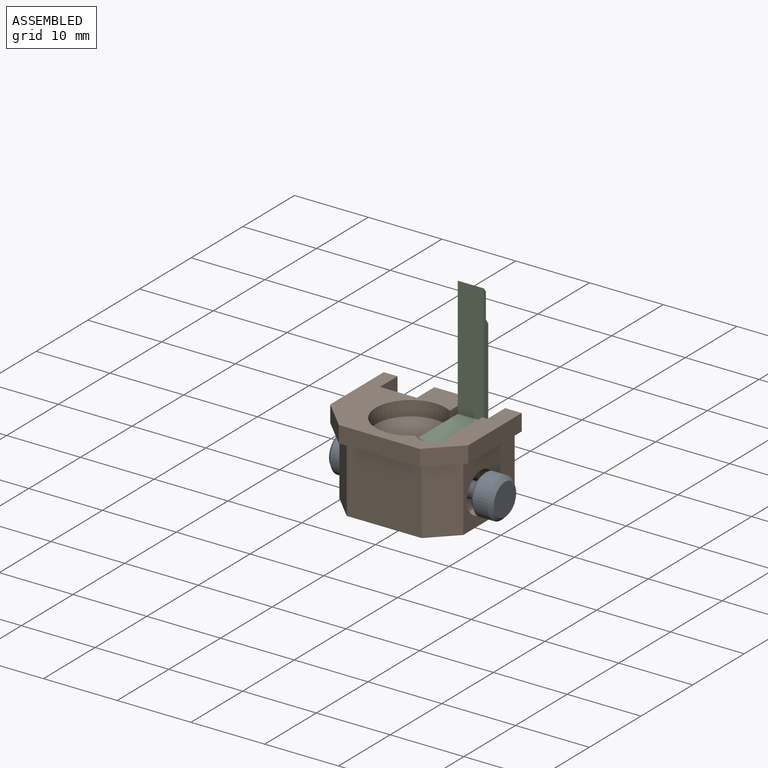
[diagram: assembled view]
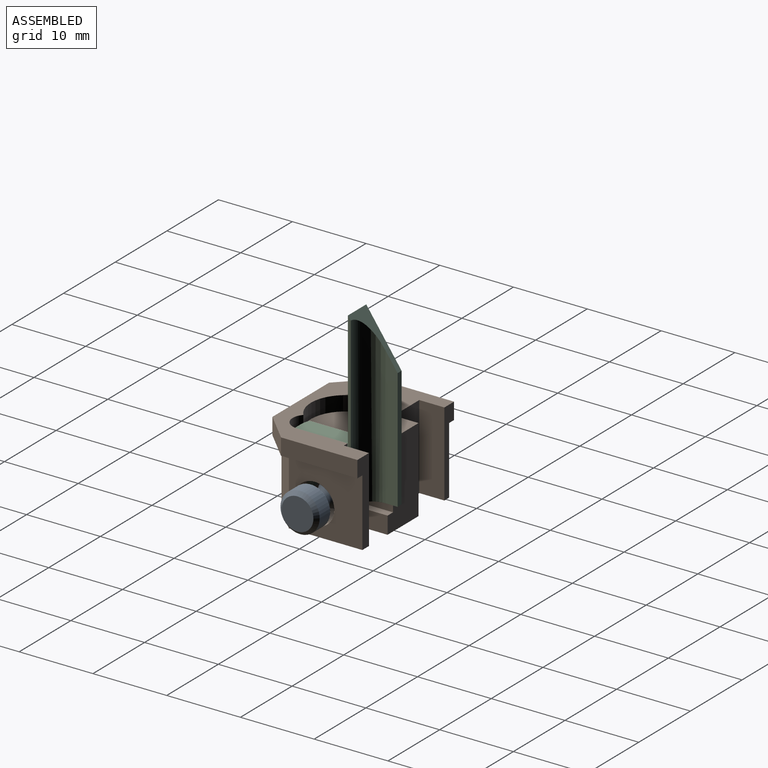
[diagram: assembled view, second angle]
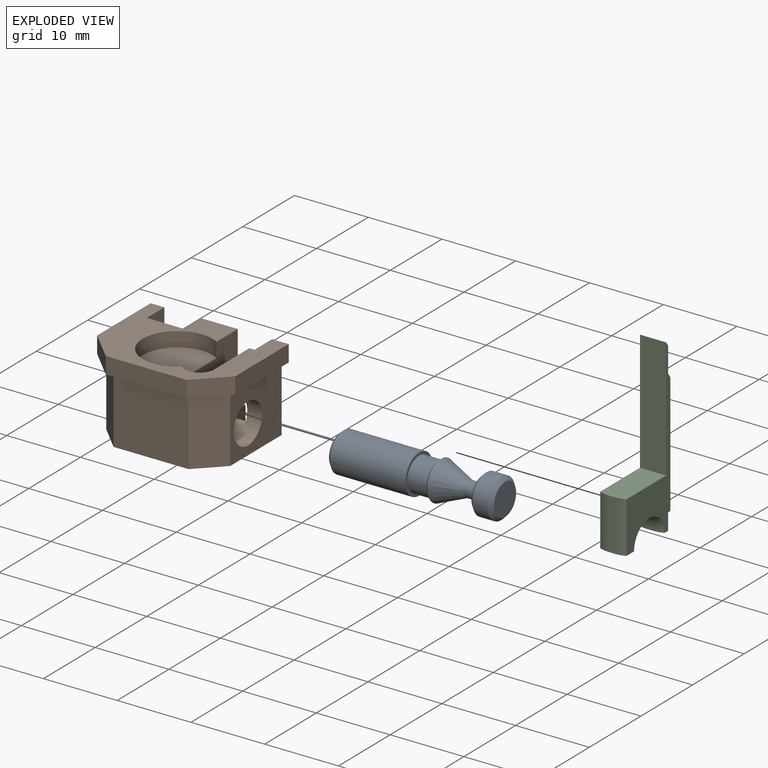
[diagram: exploded view]
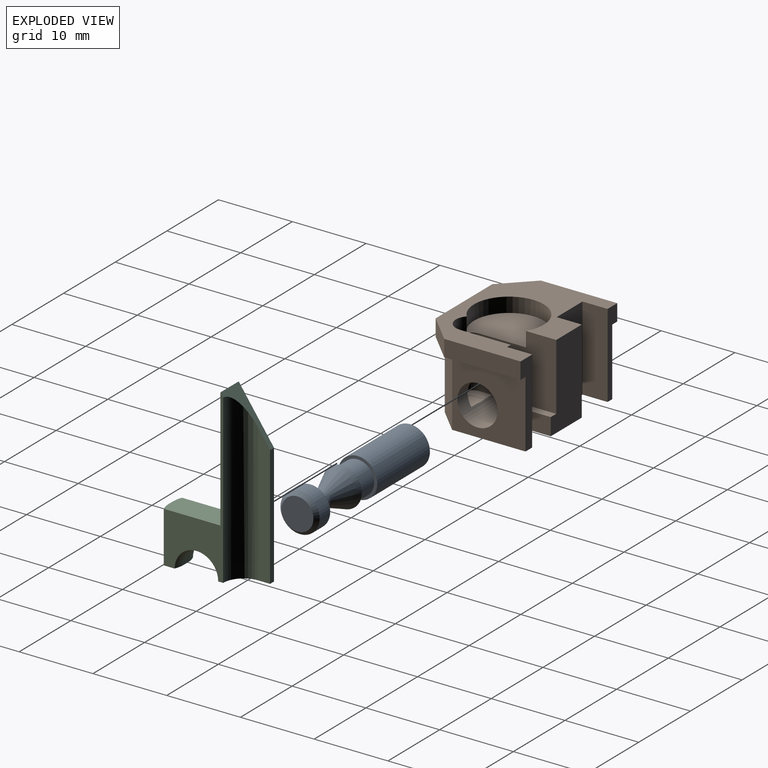
[diagram: exploded view, second angle]
ASSEMBLY  parts=3 mates=2
PART A: 14 faces, bbox 22.4x5.3x5.3 mm
  f0: cylinder r=2.66mm len=5.32mm, axis (1,0,0), area 34.1mm2, adj f5,f6
  f1: plane 4.32x4.32mm, normal (-1,0,0), area 11.2mm2, adj f3,f5
  f2: plane 4.32x4.32mm, normal (1,0,0), area 14.7mm2, adj f6
  f3: cylinder r=1.05mm len=2.1mm, axis (1,0,0), area 11.9mm2, adj f1,f4
  f4: plane 2.11x2.11mm, normal (1,0,0), area 0mm2, adj f3,f7
  f5: cone r=2.66mm half-angle=45deg, axis (1,0,0), area 10.7mm2, adj f0,f1
  f6: cone r=2.16mm half-angle=45deg, axis (-1,0,0), area 10.7mm2, adj f0,f2
  f7: cone r=2.66mm half-angle=22.7deg, axis (-1,0,0), area 48.6mm2, adj f4,f13
  f8: plane 4.32x4.32mm, normal (-1,0,0), area 14.7mm2, adj f9
  f9: cone r=2.66mm half-angle=45deg, axis (1,0,0), area 10.7mm2, adj f8,f10
  f10: cylinder r=2.66mm len=10.2mm, axis (1,0,0), area 170.5mm2, adj f9,f11
  f11: plane 5.32x5.32mm, normal (1,0,0), area 6.3mm2, adj f10,f12
  f12: cylinder r=2.25mm len=4.5mm, axis (1,0,0), area 36.2mm2, adj f11,f13
  f13: cone r=2.25mm half-angle=45deg, axis (1,0,0), area 8.9mm2, adj f7,f12
PART B: 38 faces, bbox 11.4x18.7x14.2 mm
  f0: plane 4.3x1.38mm, normal (1,0,0), area 4.8mm2, adj f1,f2,f13,f14,f28,f36
  f1: plane 3.4x2.35mm, normal (0,-1,0), area 8mm2, adj f0,f9,f13,f14
  f2: cylinder r=2.72mm len=16.8mm, axis (0,1,0), area 239.6mm2, adj f0,f21,f25,f27,f28,f29,f30,f31
  f3: plane 10.35x2.25mm, normal (0,-1,0), area 23.3mm2, adj f4,f16,f17,f20
  f4: plane 3.88x3.88mm, normal (0,-0.71,0.71), area 12.3mm2, adj f3,f5,f17,f20
  f5: plane 10.97x2.25mm, normal (0,0,1), area 24.7mm2, adj f4,f6,f17,f20
  f6: plane 3.88x3.88mm, normal (0,0.71,0.71), area 12.3mm2, adj f5,f7,f17,f20
  f7: plane 10.35x2.25mm, normal (0,1,0), area 23.3mm2, adj f6,f8,f17,f20
  f8: plane 11.4x1.87mm, normal (0,0,-1), area 12.5mm2, adj f7,f9,f10,f17,f20,f21
  f9: plane 16.8x13.27mm, normal (-1,0,0), area 182.7mm2, adj f1,f8,f10,f11,f12,f13,f14,f15
  f10: plane 11.4x3.4mm, normal (0,-1,0), area 38.8mm2, adj f8,f9,f11,f17
  f11: plane 11.4x5mm, normal (0,0,-1), area 57mm2, adj f9,f10,f12,f17
  f12: plane 11.4x3.4mm, normal (0,1,0), area 38.8mm2, adj f9,f11,f13,f17
  f13: plane 11.4x6mm, normal (0,0,-1), area 58.8mm2, adj f0,f1,f9,f12,f17,f28
  f14: plane 11.4x3.6mm, normal (0,0,-1), area 14.8mm2, adj f0,f1,f9,f15,f17,f27,f29,f35
  f15: plane 11.4x3.4mm, normal (0,1,0), area 38.8mm2, adj f9,f14,f16,f17
  f16: plane 11.4x2.25mm, normal (0,0,-1), area 16.9mm2, adj f3,f9,f15,f17,f20,f25
  f17: plane 18.72x14.23mm, normal (1,0,0), area 127.7mm2, adj f3,f4,f5,f6,f7,f8,f10,f11
  f18: cylinder r=4.72mm len=9.45mm, axis (1,0,0), area 41.6mm2, adj f17,f19,f26,f28
  f19: plane 9.45x7.82mm, normal (1,0,0), area 57.6mm2, adj f18,f26,f28
  f20: plane 18.72x14.23mm, normal (-1,0,0), area 39.4mm2, adj f3,f4,f5,f6,f7,f8,f16,f21
  f21: plane 9.96x9.15mm, normal (0,1,0), area 67.9mm2, adj f2,f8,f9,f20,f22
  f22: plane 9.15x3.31mm, normal (0,0.71,0.71), area 42.9mm2, adj f9,f20,f21,f23
  f23: plane 10.17x9.15mm, normal (0,0,1), area 93.1mm2, adj f9,f20,f22,f24
  f24: plane 9.15x3.31mm, normal (0,-0.71,0.71), area 42.9mm2, adj f9,f20,f23,f25
  f25: plane 9.96x9.15mm, normal (0,-1,0), area 67.9mm2, adj f2,f9,f16,f20,f24
  f26: cylinder r=1.98mm len=9.05mm, axis (1,0,0), area 52.9mm2, adj f17,f18,f19,f27,f28,f30
  f27: plane 9.05x6.85mm, normal (0,1,0), area 42.4mm2, adj f2,f14,f17,f26,f29,f30
  f28: plane 10.25x9.05mm, normal (0,-1,0), area 60.9mm2, adj f0,f2,f13,f17,f18,f19,f26,f30
  f29: plane 1.38x0.9mm, normal (1,0,0), area 1.2mm2, adj f2,f14,f27,f37
  f30: plane 3.95x3.49mm, normal (1,0,0), area 9.7mm2, adj f2,f26,f27,f28,f31,f32,f33
  f31: plane 1.53x0.03mm, normal (0,1,0), area 0mm2, adj f2,f30,f33,f34
  f32: plane 1.53x0.03mm, normal (0,-1,0), area 0mm2, adj f2,f30,f33,f34
  f33: cylinder r=0.6mm len=1.2mm, axis (1,0,0), area 0mm2, adj f30,f31,f32,f34
  f34: plane 2.13x1.2mm, normal (1,0,0), area 2.4mm2, adj f2,f31,f32,f33
  f35: plane 1.2x0.91mm, normal (1,0,0), area 1.1mm2, adj f2,f14,f36,f37
  f36: plane 0.91x0.03mm, normal (0,-1,0), area 0mm2, adj f0,f2,f14,f35
  f37: plane 0.91x0.03mm, normal (0,1,0), area 0mm2, adj f2,f14,f29,f35
PART C: 16 faces, bbox 23.2x5.9x12.8 mm
  f0: cylinder r=2.68mm len=5.36mm, axis (0,-1,0), area 6.7mm2, adj f1,f6,f12,f13
  f1: plane 3.55x2.03mm, normal (1,0,0), area 6.7mm2, adj f0,f2,f4,f5,f10,f11,f12,f13
  f2: plane 6.93x0.8mm, normal (0,0,-1), area 5.5mm2, adj f1,f3,f10,f11
  f3: plane 7.96x3.55mm, normal (-1,0,0), area 28mm2, adj f2,f4,f5,f7,f10,f11
  f4: plane 23.24x12.48mm, normal (0,1,0), area 134.5mm2, adj f1,f3,f6,f7,f8,f9,f11,f12
  f5: plane 23.24x8.06mm, normal (0,-1,0), area 48.2mm2, adj f1,f3,f6,f7,f8,f10,f13,f15
  f6: plane 5.36x3.55mm, normal (1,0,0), area 8.2mm2, adj f0,f4,f5,f9,f12,f13,f14,f15
  f7: plane 16.31x3.55mm, normal (0,0,-1), area 57.9mm2, adj f3,f4,f5,f8
  f8: plane 6.85x4.79mm, normal (-0.57,0,0.82), area 11.2mm2, adj f4,f5,f7,f9,f14,f15
  f9: plane 16.39x0.77mm, normal (0,0,1), area 12.6mm2, adj f4,f6,f8,f14
  f10: cylinder r=3.57mm len=6.93mm, axis (-1,0,0), area 9.8mm2, adj f1,f2,f3,f5
  f11: cylinder r=3.57mm len=6.93mm, axis (-1,0,0), area 9.8mm2, adj f1,f2,f3,f4
  f12: torus R=6.25mm, axis (0,1,0), area 12.3mm2, adj f0,f1,f4,f6
  f13: torus R=6.25mm, axis (0,1,0), area 12.3mm2, adj f0,f1,f5,f6
  f14: plane 18.73x1.64mm, normal (0,-1,0), area 28.7mm2, adj f6,f8,f9,f15
  f15: cylinder r=2.78mm len=22.7mm, axis (-1,0,0), area 92.8mm2, adj f5,f6,f8,f14
PLACE A t=(10.51,0.09,-2.62)mm
PLACE B rot(axis=(0.58,-0.58,0.58),120deg) t=(8.22,6.6,4.86)mm
PLACE C rot(axis=(-0.58,0.58,0.58),120deg) t=(5.38,-4.63,-2.62)mm
MATE cylindrical B.f2 <-> A.f0  axis (-1,0,0) through (-1.14,0.09,-2.62)mm
MATE cylindrical C.f0 <-> A.f0  axis (-1,0,0) through (1.83,0.09,-2.62)mm
